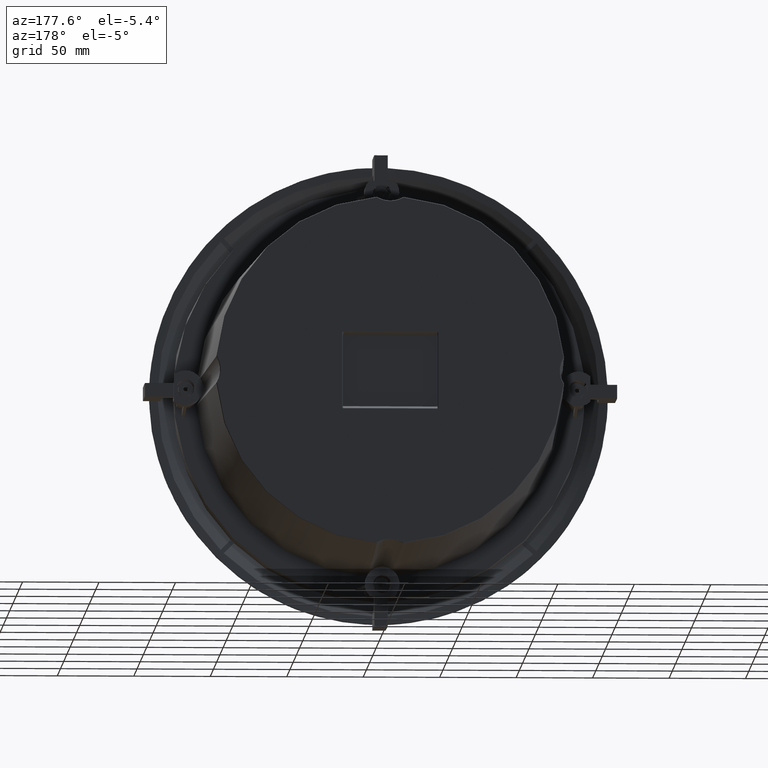
[diagram: clean part render]
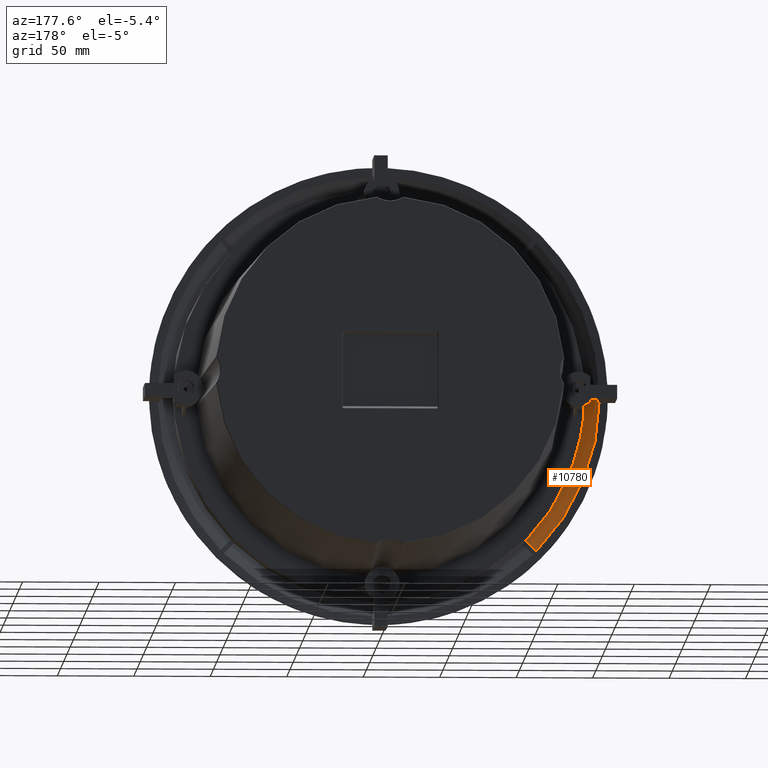
[diagram: same view with one face highlighted and labeled with its STEP entity id]
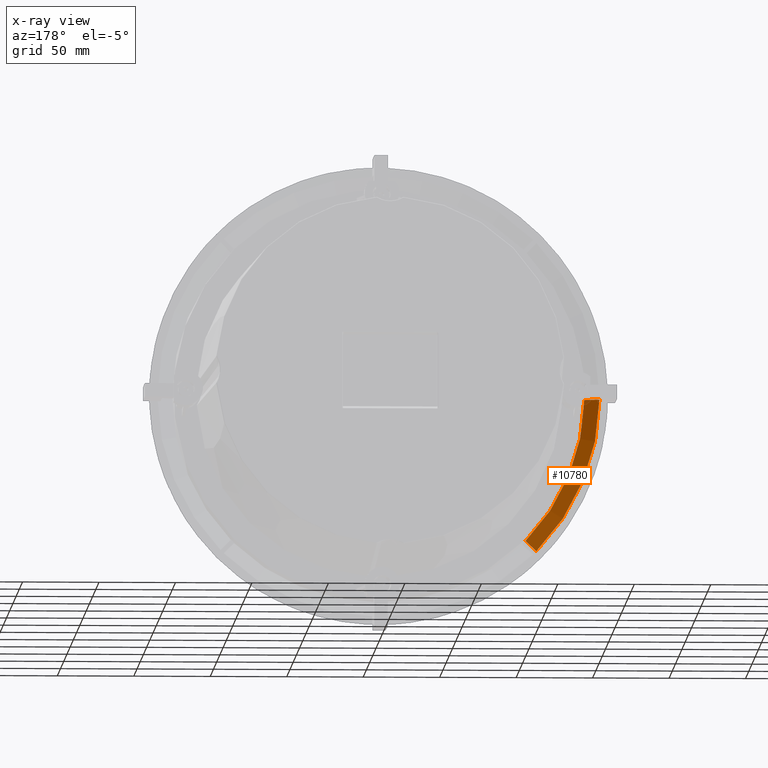
[diagram: x-ray of the same camera — body ghosted, the highlighted face saturated]
A machine part, auxiliary view. The second image highlights one B-rep face of the part: STEP entity #10780.
The next image is the same camera in x-ray: the body ghosted, the highlighted face saturated — about 1% of this face is hidden behind the body in this view.
In plain terms, the highlighted face is a freeform B-spline surface patch.
Its self-contained STEP definition (entity closure, byte-faithful):
#256 = CARTESIAN_POINT ( 'NONE',  ( -105.6090630659398073, -22.03875461444265582, -55.69427648852593649 ) ) ;
#905 = CARTESIAN_POINT ( 'NONE',  ( -134.6955584974114686, -15.66020223124884403, -1.499999999998651079 ) ) ;
#1154 = VERTEX_POINT ( 'NONE', #905 ) ;
#1639 = CARTESIAN_POINT ( 'NONE',  ( -128.5783488529083911, -18.12529556941416686, -31.21487838092237155 ) ) ;
#1833 = CARTESIAN_POINT ( 'NONE',  ( -139.5354861913450861, -14.02521787071747639, 4.285587369350904119 ) ) ;
#2419 = CIRCLE ( 'NONE', #5186, 144.4993611626638312 ) ;
#3204 = CARTESIAN_POINT ( 'NONE',  ( -81.73413043432719860, -22.15174661547114709, -79.61281009076928683 ) ) ;
#3657 = CARTESIAN_POINT ( 'NONE',  ( -2.917947165355135764E-14, -15.66020223124274580, -2.917947165355129454E-14 ) ) ;
#4222 = VERTEX_POINT ( 'NONE', #5562 ) ;
#4743 = CARTESIAN_POINT ( 'NONE',  ( -103.2316329977689833, -12.32470072771660519, -101.1103126542092241 ) ) ;
#5186 = AXIS2_PLACEMENT_3D ( 'NONE', #6109, #20641, #12634 ) ;
#5562 = CARTESIAN_POINT ( 'NONE',  ( -144.4915754513665433, -12.32470072771705283, -1.500000000000080380 ) ) ;
#6109 = CARTESIAN_POINT ( 'NONE',  ( -1.271060097592949851E-13, -12.32470072771656078, 2.990323610908267177E-14 ) ) ;
#7030 = DIRECTION ( 'NONE',  ( 5.715123890295924756E-16, 1.000000000000000000, -9.577690591101021377E-17 ) ) ;
#7132 = DIRECTION ( 'NONE',  ( -0.7071067811865476838, -2.575609677160429317E-16, -0.7071067811865473507 ) ) ;
#7330 =( BOUNDED_SURFACE ( )  B_SPLINE_SURFACE ( 3, 3, ( 
 ( #8066, #3204, #16413, #11393 ),
 ( #14592, #256, #19724, #21135 ),
 ( #16311, #1639, #16527, #14897 ),
 ( #1833, #8365, #19829, #11705 ) ),
 .UNSPECIFIED., .F., .F., .T. ) 
 B_SPLINE_SURFACE_WITH_KNOTS ( ( 4, 4 ),
 ( 4, 4 ),
 ( 0.0000000000000000000, 1.000000000000000000 ),
 ( 0.0000000000000000000, 1.000000000000000000 ),
 .UNSPECIFIED. ) 
 GEOMETRIC_REPRESENTATION_ITEM ( )  RATIONAL_B_SPLINE_SURFACE ( (
 ( 1.000000000000000000, 0.9989617882877839250, 0.9989617882877839250, 1.000000000000000000),
 ( 0.9954596670653397261, 0.9944261691799537450, 0.9944261691799537450, 0.9954596670653397261),
 ( 0.9954596670653397261, 0.9944261691799537450, 0.9944261691799537450, 0.9954596670653397261),
 ( 1.000000000000000000, 0.9989617882877839250, 0.9989617882877839250, 1.000000000000000000) ) ) 
 REPRESENTATION_ITEM ( '' )  SURFACE ( )  );
#7922 = B_SPLINE_CURVE_WITH_KNOTS ( 'NONE', 3,
 ( #21192, #16154, #16362, #15932 ),
 .UNSPECIFIED., .F., .F.,
 ( 4, 4 ),
 ( 0.0000000000000000000, 0.01034830993162015253 ),
 .UNSPECIFIED. ) ;
#8066 = CARTESIAN_POINT ( 'NONE',  ( -70.63012827518522840, -25.81467126989328520, -68.50880793162740190 ) ) ;
#8276 = AXIS2_PLACEMENT_3D ( 'NONE', #3657, #7030, #7132 ) ;
#8296 = VERTEX_POINT ( 'NONE', #4743 ) ;
#8365 = CARTESIAN_POINT ( 'NONE',  ( -150.3291231810005399, -10.46467470135746680, -6.508049620304470650 ) ) ;
#9068 = ORIENTED_EDGE ( 'NONE', *, *, #15615, .F. ) ;
#10780 = ADVANCED_FACE ( 'NONE', ( #16637 ), #7330, .F. ) ;
#11393 = CARTESIAN_POINT ( 'NONE',  ( -103.4226967495525429, -12.22897930905464747, -101.3013764059945174 ) ) ;
#11705 = CARTESIAN_POINT ( 'NONE',  ( -171.4114778381344593, -0.8192561663743296307, -27.59040427743821056 ) ) ;
#12053 = CARTESIAN_POINT ( 'NONE',  ( -1.060660171780335004, 395.9791666666662877, 1.060660171779702399 ) ) ;
#12262 = CARTESIAN_POINT ( 'NONE',  ( -96.30480298100748371, -15.66020223124928457, -94.18348263744961457 ) ) ;
#12634 = DIRECTION ( 'NONE',  ( 0.7071067811865477948, 2.521062564041676310E-16, 0.7071067811865472397 ) ) ;
#12921 = EDGE_CURVE ( 'NONE', #8296, #4222, #2419, .T. ) ;
#13237 = AXIS2_PLACEMENT_3D ( 'NONE', #12053, #15263, #16771 ) ;
#13468 = EDGE_CURVE ( 'NONE', #18726, #1154, #17493, .T. ) ;
#13926 = ORIENTED_EDGE ( 'NONE', *, *, #13468, .F. ) ;
#14592 = CARTESIAN_POINT ( 'NONE',  ( -94.50806155416334775, -25.70068943249257742, -44.59327497674956930 ) ) ;
#14897 = CARTESIAN_POINT ( 'NONE',  ( -150.0580620368454845, -8.298080960804890438, -52.69459156485927309 ) ) ;
#15018 = EDGE_CURVE ( 'NONE', #8296, #18726, #19379, .T. ) ;
#15263 = DIRECTION ( 'NONE',  ( -0.7071067811865452413, -5.828670879282112266E-16, 0.7071067811865499042 ) ) ;
#15615 = EDGE_CURVE ( 'NONE', #1154, #4222, #7922, .T. ) ;
#15932 = CARTESIAN_POINT ( 'NONE',  ( -144.4915754513665433, -12.32470072771705283, -1.500000000000080380 ) ) ;
#16154 = CARTESIAN_POINT ( 'NONE',  ( -137.9741807712595403, -14.58738001930122685, -1.500000000000172085 ) ) ;
#16200 = ORIENTED_EDGE ( 'NONE', *, *, #15018, .F. ) ;
#16311 = CARTESIAN_POINT ( 'NONE',  ( -117.5812742604420578, -21.75294757037317339, -20.21780378845605242 ) ) ;
#16362 = CARTESIAN_POINT ( 'NONE',  ( -141.2395197558861639, -13.47554618478877408, -1.499999999999961364 ) ) ;
#16413 = CARTESIAN_POINT ( 'NONE',  ( -92.67634692977281929, -17.61847613401642931, -90.55502658621486489 ) ) ;
#16425 = EDGE_LOOP ( 'NONE', ( #9068, #13926, #16200, #20392 ) ) ;
#16527 = CARTESIAN_POINT ( 'NONE',  ( -139.4151957197169054, -13.63567886024056897, -42.05172524773072240 ) ) ;
#16637 = FACE_OUTER_BOUND ( 'NONE', #16425, .T. ) ;
#16771 = DIRECTION ( 'NONE',  ( -6.843907004770641611E-16, 1.000000000000000000, -1.351759247467500545E-15 ) ) ;
#17493 = CIRCLE ( 'NONE', #8276, 134.7039104068993538 ) ;
#18726 = VERTEX_POINT ( 'NONE', #12262 ) ;
#19379 = CIRCLE ( 'NONE', #13237, 433.1164549005598019 ) ;
#19724 = CARTESIAN_POINT ( 'NONE',  ( -116.5483226335471727, -17.50670916392116183, -66.63353605613325215 ) ) ;
#19829 = CARTESIAN_POINT ( 'NONE',  ( -160.9654965373244124, -6.058112522111305687, -17.14442297662821346 ) ) ;
#20392 = ORIENTED_EDGE ( 'NONE', *, *, #12921, .T. ) ;
#20641 = DIRECTION ( 'NONE',  ( 5.715123890295924756E-16, 1.000000000000000000, -9.577690591101021377E-17 ) ) ;
#21135 = CARTESIAN_POINT ( 'NONE',  ( -127.2917684547673360, -12.11866874892919199, -77.37698187735333022 ) ) ;
#21192 = CARTESIAN_POINT ( 'NONE',  ( -134.6955584974114686, -15.66020223124884403, -1.499999999998651079 ) ) ;